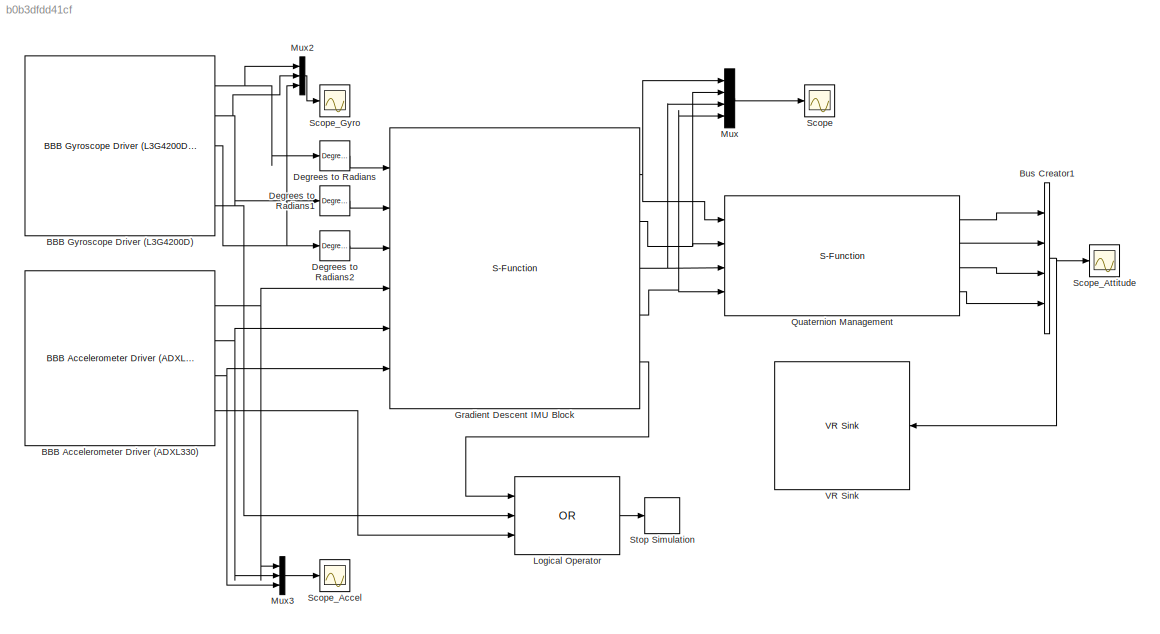
MODEL slx_b0b3dfdd41cf
KIND model
BLOCK [Reference] BBB Accelerometer Driver (ADXL330)  REF=BLACKlink/BBB Accelerometer Driver (ADXL330)
  BBB_AccelSensitivity = Sensitivity: 333 mV/g -> 3.3V Operating Voltage
  BBB_CalibrationReq = on
  BBB_DebugInfo = No Debug Info
  Ports = [0, 4]
  SourceBlock = BLACKlink/BBB Accelerometer Driver (ADXL330)
  SourceType = BLACKlink Album - BBB_Driver_Accelerometer_ADXL330
BLOCK [Reference] BBB Gyroscope Driver (L3G4200D)   REF=BLACKlink/BBB Gyroscope Driver (L3G4200D)

  BBB_DebugInfo = No Debug Info
  BBB_GyroRange = Range: 250 deg/sec
  BBB_I2CAddress = Gyro Address: 0x068
  BBB_I2CBus = BeagleBone Black I2C Channel 1
  Ports = [0, 5]
  SourceBlock = BLACKlink/BBB Gyroscope Driver (L3G4200D)
  SourceType = BLACKlink Album - BBB_Driver_Gyroscope_L3G4200D
BLOCK [BusCreator] Bus Creator1
  DisplayOption = bar
  Ports = [4, 1]
BLOCK [Reference] Degrees to Radians  REF=simulink_extras/Transformations/Degrees to
Radians
  Ports = [1, 1]
  SourceBlock = simulink_extras/Transformations/Degrees to\nRadians
  SourceType = DegreesToRadians
BLOCK [Reference] Degrees to Radians1  REF=simulink_extras/Transformations/Degrees to
Radians
  Ports = [1, 1]
  SourceBlock = simulink_extras/Transformations/Degrees to\nRadians
  SourceType = DegreesToRadians
BLOCK [Reference] Degrees to Radians2  REF=simulink_extras/Transformations/Degrees to
Radians
  Ports = [1, 1]
  SourceBlock = simulink_extras/Transformations/Degrees to\nRadians
  SourceType = DegreesToRadians
BLOCK [S-Function] Gradient Descent IMU Block
  CopyFcn = set_param(gcbh,'LinkStatus','none')
  EnableBusSupport = off
  FunctionName = BBB_AHRS_IMU_v1
  InitFcn = try, set_param(gcb,'FunctionName','BBB_AHRS_IMU_v1'), end
  OpenFcn = sfunctionwizard(gcbh)
  Ports = [6, 5]
  PreSaveFcn = try, set_param(gcb,'FunctionName','BBB_AHRS_IMU_v1'), end
  SFunctionModules = BBB_AHRS_IMU_v1_wrapper
BLOCK [Logic] Logical Operator
  AllPortsSameDT = off
  Inputs = 3
  Operator = OR
  OutDataTypeStr = boolean
  Ports = [3, 1]
BLOCK [Mux] Mux
  DisplayOption = bar
  Ports = [4, 1]
BLOCK [Mux] Mux2
  DisplayOption = bar
  Inputs = 3
  Ports = [3, 1]
BLOCK [Mux] Mux3
  DisplayOption = bar
  Inputs = 3
  Ports = [3, 1]
BLOCK [S-Function] Quaternion Management 
  CopyFcn = set_param(gcbh,'LinkStatus','none')
  EnableBusSupport = off
  FunctionName = BBB_Quaternion_SFRotation
  InitFcn = try, set_param(gcb,'FunctionName','BBB_Quaternion_SFRotation'), end
  OpenFcn = sfunctionwizard(gcbh)
  Ports = [4, 4]
  PreSaveFcn = try, set_param(gcb,'FunctionName','BBB_Quaternion_SFRotation'), end
  SFunctionModules = BBB_Quaternion_SFRotation_wrapper
BLOCK [Scope] Scope
  DataFormat = StructureWithTime
  Floating = off
  NumInputPorts = 1
  Ports = [1]
  SampleTime = 0
  ShowLegends = off
BLOCK [Scope] Scope_Accel
  DataFormat = StructureWithTime
  Floating = off
  NumInputPorts = 1
  Ports = [1]
  SampleTime = 0
  SaveName = ScopeData3
  ShowLegends = off
BLOCK [Scope] Scope_Attitude
  DataFormat = StructureWithTime
  Floating = off
  NumInputPorts = 1
  Ports = [1]
  SampleTime = 0
  SaveName = ScopeData5
  ShowLegends = off
  YMax = 1
  YMin = -3.25
BLOCK [Scope] Scope_Gyro 
  DataFormat = StructureWithTime
  Floating = off
  NumInputPorts = 1
  Ports = [1]
  SampleTime = 0
  SaveName = ScopeData2
  ShowLegends = off
  YMax = 275
  YMin = -300
BLOCK [Stop] Stop Simulation
BLOCK [Reference] VR Sink  REF=vrlib/VR Sink
  AllowVariableSize = off
  AutoView = off
  FieldsWritten = BBB_Aircraft.rotation.4.1.1.double
  InstantiateOnLoad = on
  Ports = [1]
  RemoteChange = off
  RemoteView = off
  SampleTime = -1
  SourceBlock = vrlib/VR Sink
  SourceType = Virtual Reality Sink
  VideoDimensions = []
  ViewEnable = on
  WorldFileName = Software_Quadrotor_VRML\BBB_Plane.WRL
NET BBB Accelerometer Driver (ADXL330):1 -> Gradient Descent IMU Block:4, Mux3:1
NET BBB Accelerometer Driver (ADXL330):2 -> Gradient Descent IMU Block:5, Mux3:2
NET BBB Accelerometer Driver (ADXL330):3 -> Gradient Descent IMU Block:6, Mux3:3
LINE BBB Accelerometer Driver (ADXL330):4 -> Logical Operator:3
NET BBB Gyroscope Driver (L3G4200D) :1 -> Degrees to Radians:1, Mux2:1
NET BBB Gyroscope Driver (L3G4200D) :2 -> Degrees to Radians1:1, Mux2:2
NET BBB Gyroscope Driver (L3G4200D) :3 -> Degrees to Radians2:1, Mux2:3
LINE BBB Gyroscope Driver (L3G4200D) :5 -> Logical Operator:2
NET Bus Creator1:1 -> Scope_Attitude:1, VR Sink:1
LINE Degrees to Radians1:1 -> Gradient Descent IMU Block:2
LINE Degrees to Radians2:1 -> Gradient Descent IMU Block:3
LINE Degrees to Radians:1 -> Gradient Descent IMU Block:1
NET Gradient Descent IMU Block:1 -> Mux:1, Quaternion Management :1
NET Gradient Descent IMU Block:2 -> Mux:2, Quaternion Management :2
NET Gradient Descent IMU Block:3 -> Mux:3, Quaternion Management :3
NET Gradient Descent IMU Block:4 -> Mux:4, Quaternion Management :4
LINE Gradient Descent IMU Block:5 -> Logical Operator:1
LINE Logical Operator:1 -> Stop Simulation:1
LINE Mux2:1 -> Scope_Gyro :1
LINE Mux3:1 -> Scope_Accel:1
LINE Mux:1 -> Scope:1
LINE Quaternion Management :1 -> Bus Creator1:1
LINE Quaternion Management :2 -> Bus Creator1:2
LINE Quaternion Management :3 -> Bus Creator1:3
LINE Quaternion Management :4 -> Bus Creator1:4
note: NET lines group one-source signal fan-out (src -> all destinations, sorted); 1:1 wires keep LINE
